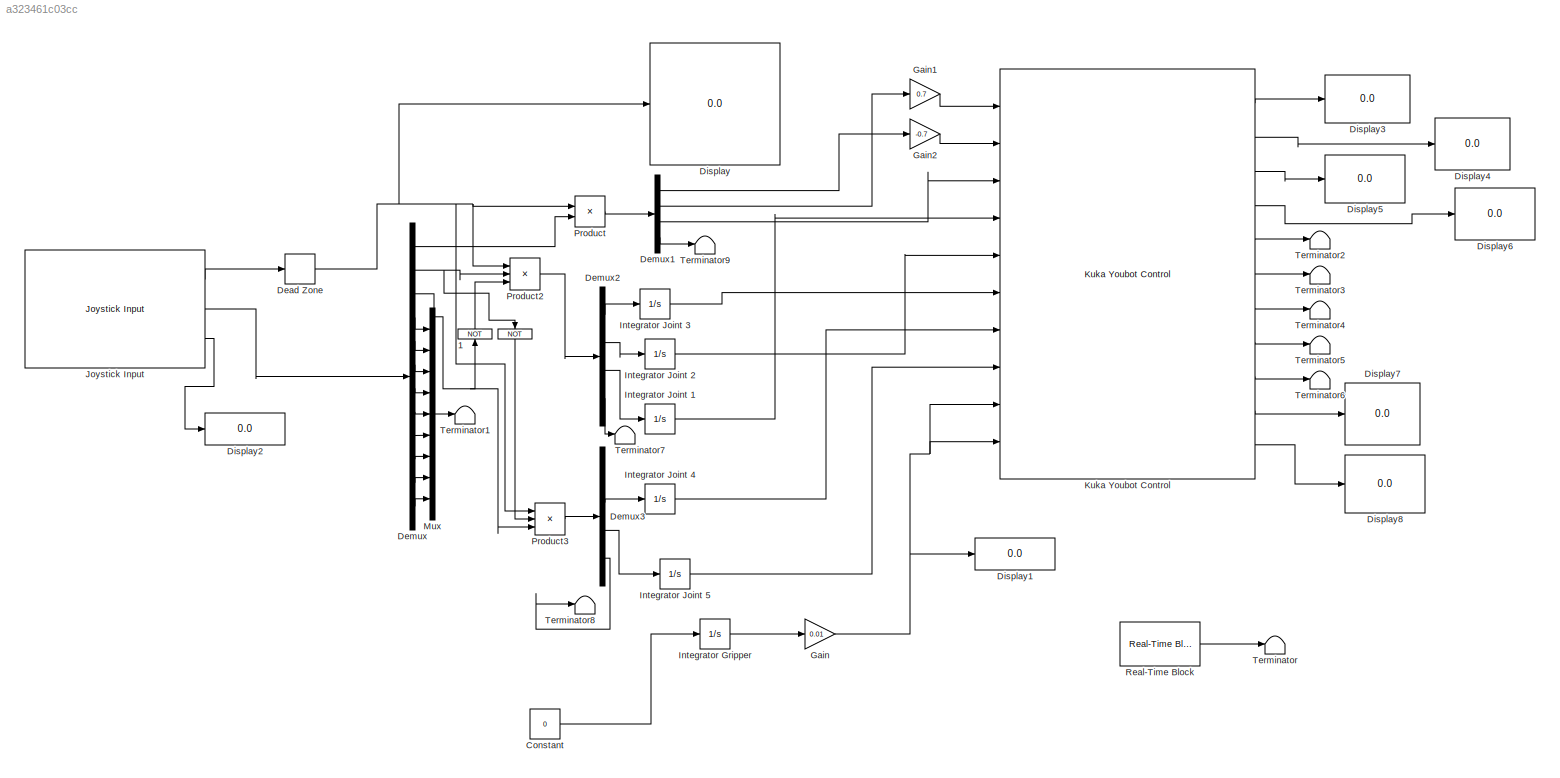
MODEL slx_a323461c03cc
KIND model
BLOCK [Logic]  
  AllPortsSameDT = off
  Operator = NOT
  OutDataTypeStr = boolean
  Ports = [1, 1]
BLOCK [Logic]  1
  AllPortsSameDT = off
  Operator = NOT
  OutDataTypeStr = boolean
  Ports = [1, 1]
BLOCK [Constant] Constant
  Value = 0
BLOCK [DeadZone] Dead Zone
  LowerValue = -0.1
  UpperValue = 0.1
BLOCK [Demux] Demux
  DisplayOption = bar
  Outputs = 12
  Ports = [1, 12]
BLOCK [Demux] Demux1
  DisplayOption = bar
  Ports = [1, 4]
BLOCK [Demux] Demux2
  DisplayOption = bar
  Ports = [1, 4]
BLOCK [Demux] Demux3
  DisplayOption = bar
  Ports = [1, 4]
BLOCK [Display] Display
  Decimation = 1
  Ports = [1]
BLOCK [Display] Display1
  Decimation = 1
  Ports = [1]
BLOCK [Display] Display2
  Decimation = 1
  Ports = [1]
BLOCK [Display] Display3
  Decimation = 1
  Ports = [1]
BLOCK [Display] Display4
  Decimation = 1
  Ports = [1]
BLOCK [Display] Display5
  Decimation = 1
  Ports = [1]
BLOCK [Display] Display6
  Decimation = 1
  Ports = [1]
BLOCK [Display] Display7
  Decimation = 1
  Ports = [1]
BLOCK [Display] Display8
  Decimation = 1
  Ports = [1]
BLOCK [Gain] Gain
  Gain = 0.01
  OutDataTypeStr = Inherit: Inherit via internal rule
  ParamDataTypeStr = Inherit: Inherit via internal rule
  SaturateOnIntegerOverflow = off
BLOCK [Gain] Gain1
  Gain = 0.7
  OutDataTypeStr = Inherit: Inherit via internal rule
  ParamDataTypeStr = Inherit: Inherit via internal rule
  SaturateOnIntegerOverflow = off
BLOCK [Gain] Gain2
  Gain = -0.7
  OutDataTypeStr = Inherit: Inherit via internal rule
  ParamDataTypeStr = Inherit: Inherit via internal rule
  SaturateOnIntegerOverflow = off
BLOCK [Integrator] Integrator Gripper
  LimitOutput = on
  LowerSaturationLimit = 0
  Ports = [1, 1]
  UpperSaturationLimit = 1
BLOCK [Integrator] Integrator Joint 1 
  InitialCondition = 0.02
  LimitOutput = on
  LowerSaturationLimit = 0.02
  Ports = [1, 1]
  UpperSaturationLimit = 5.84
BLOCK [Integrator] Integrator Joint 2
  InitialCondition = 0.02
  LimitOutput = on
  LowerSaturationLimit = 0.02
  Ports = [1, 1]
  UpperSaturationLimit = 2.61
BLOCK [Integrator] Integrator Joint 3 
  InitialCondition = -0.02
  LimitOutput = on
  LowerSaturationLimit = -5.02
  Ports = [1, 1]
  UpperSaturationLimit = -0.02
BLOCK [Integrator] Integrator Joint 4
  InitialCondition = 0.03
  LimitOutput = on
  LowerSaturationLimit = 0.03
  Ports = [1, 1]
  UpperSaturationLimit = 3.42
BLOCK [Integrator] Integrator Joint 5 
  InitialCondition = 0.12
  LimitOutput = on
  LowerSaturationLimit = 0.12
  Ports = [1, 1]
  UpperSaturationLimit = 5.64
BLOCK [Reference] Joystick Input  REF=vrlib/Joystick Input
  Ports = [0, 3]
  SourceBlock = vrlib/Joystick Input
  SourceType = Joystick Input
  adjustports = on
  forcefeed = off
  joyid = 1
BLOCK [Reference] Kuka Youbot Control  REF=kuka_simulink_library/Kuka Youbot Control
  Ports = [10, 11]
  SourceBlock = kuka_simulink_library/Kuka Youbot Control
  youbot_IP = 192.168.65.59
  youbot_port = 11311
BLOCK [Mux] Mux
  DisplayOption = bar
  Inputs = 9
  Ports = [9, 1]
BLOCK [Product] Product
  InputSameDT = off
  OutDataTypeStr = Inherit: Inherit via internal rule
  Ports = [2, 1]
  RndMeth = Floor
  SaturateOnIntegerOverflow = off
BLOCK [Product] Product2
  InputSameDT = off
  Inputs = 3
  OutDataTypeStr = Inherit: Inherit via internal rule
  Ports = [3, 1]
  RndMeth = Floor
  SaturateOnIntegerOverflow = off
BLOCK [Product] Product3
  InputSameDT = off
  Inputs = 3
  OutDataTypeStr = Inherit: Inherit via internal rule
  Ports = [3, 1]
  RndMeth = Floor
  SaturateOnIntegerOverflow = off
BLOCK [Reference] Real-Time Block  REF=robotica/Utilities blocks/Real-Time Block
  Ports = [0, 1]
  SourceBlock = robotica/Utilities blocks/Real-Time Block
  sync_time = 0.01
  sync_type = Fixed
BLOCK [Terminator] Terminator
BLOCK [Terminator] Terminator1
BLOCK [Terminator] Terminator2
BLOCK [Terminator] Terminator3
BLOCK [Terminator] Terminator4
BLOCK [Terminator] Terminator5
BLOCK [Terminator] Terminator6
BLOCK [Terminator] Terminator7
BLOCK [Terminator] Terminator8
BLOCK [Terminator] Terminator9
LINE  1:1 -> Product2:3
LINE  :1 -> Product3:2
LINE Constant:1 -> Integrator Gripper:1
NET Dead Zone:1 -> Display:1, Product2:1, Product3:1, Product:1
LINE Demux1:1 -> Gain2:1
LINE Demux1:2 -> Gain1:1
LINE Demux1:3 -> Kuka Youbot Control:3
LINE Demux1:4 -> Terminator9:1
LINE Demux2:1 -> Integrator Joint 3 :1
LINE Demux2:2 -> Integrator Joint 2:1
LINE Demux2:3 -> Integrator Joint 1 :1
LINE Demux2:4 -> Terminator7:1
LINE Demux3:2 -> Integrator Joint 4:1
LINE Demux3:3 -> Integrator Joint 5 :1
LINE Demux3:4 -> Terminator8:1
LINE Demux:1 -> Product:2
LINE Demux:10 -> Mux:7
LINE Demux:11 -> Mux:8
LINE Demux:12 -> Mux:9
NET Demux:2 ->  :1, Product2:2
NET Demux:3 ->  1:1, Product3:3
LINE Demux:4 -> Mux:1
LINE Demux:5 -> Mux:2
LINE Demux:6 -> Mux:3
LINE Demux:7 -> Mux:4
LINE Demux:8 -> Mux:5
LINE Demux:9 -> Mux:6
LINE Gain1:1 -> Kuka Youbot Control:1
LINE Gain2:1 -> Kuka Youbot Control:2
NET Gain:1 -> Display1:1, Kuka Youbot Control:10, Kuka Youbot Control:9
LINE Integrator Gripper:1 -> Gain:1
LINE Integrator Joint 1 :1 -> Kuka Youbot Control:4
LINE Integrator Joint 2:1 -> Kuka Youbot Control:5
LINE Integrator Joint 3 :1 -> Kuka Youbot Control:6
LINE Integrator Joint 4:1 -> Kuka Youbot Control:7
LINE Integrator Joint 5 :1 -> Kuka Youbot Control:8
LINE Joystick Input:1 -> Dead Zone:1
LINE Joystick Input:2 -> Demux:1
LINE Joystick Input:3 -> Display2:1
LINE Kuka Youbot Control:1 -> Display3:1
LINE Kuka Youbot Control:10 -> Display7:1
LINE Kuka Youbot Control:11 -> Display8:1
LINE Kuka Youbot Control:2 -> Display4:1
LINE Kuka Youbot Control:3 -> Display5:1
LINE Kuka Youbot Control:4 -> Display6:1
LINE Kuka Youbot Control:5 -> Terminator2:1
LINE Kuka Youbot Control:6 -> Terminator3:1
LINE Kuka Youbot Control:7 -> Terminator4:1
LINE Kuka Youbot Control:8 -> Terminator5:1
LINE Kuka Youbot Control:9 -> Terminator6:1
LINE Mux:1 -> Terminator1:1
LINE Product2:1 -> Demux2:1
LINE Product3:1 -> Demux3:1
LINE Product:1 -> Demux1:1
LINE Real-Time Block:1 -> Terminator:1
note: NET lines group one-source signal fan-out (src -> all destinations, sorted); 1:1 wires keep LINE
